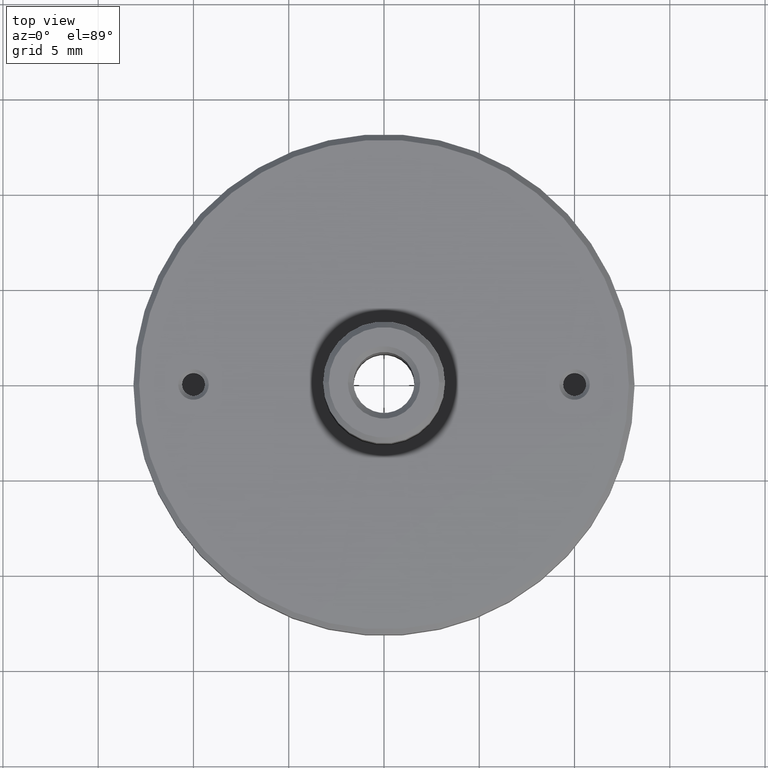
[diagram: clean part render]
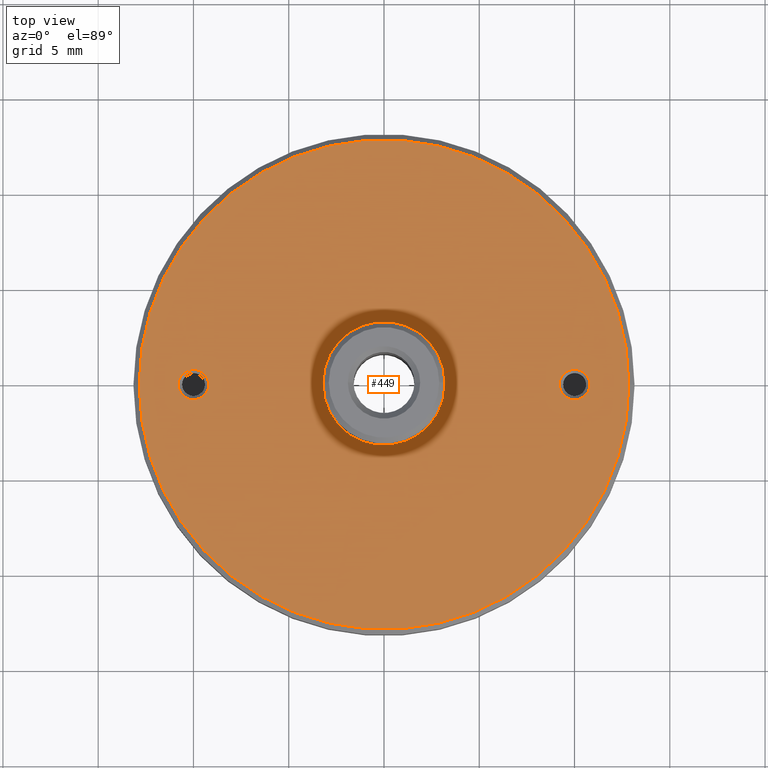
[diagram: same view with one face highlighted and labeled with its STEP entity id]
A machine part, top view. The second image highlights one B-rep face of the part: STEP entity #449.
In plain terms, the highlighted planar face has unit normal (0, 0, 1).
Its self-contained STEP definition (entity closure, byte-faithful):
#8 = ORIENTED_EDGE ( 'NONE', *, *, #310, .F. ) ;
#10 = CARTESIAN_POINT ( 'NONE',  ( 0.000000000000000000, 0.000000000000000000, 3.200000000000091660 ) ) ;
#23 = FACE_BOUND ( 'NONE', #383, .T. ) ;
#33 = DIRECTION ( 'NONE',  ( 1.000000000000000000, 0.000000000000000000, 0.000000000000000000 ) ) ;
#44 = DIRECTION ( 'NONE',  ( -0.000000000000000000, 0.000000000000000000, -1.000000000000000000 ) ) ;
#45 = CARTESIAN_POINT ( 'NONE',  ( 9.200000000000018829, 9.797174393178595655E-17, 3.199999999999981082 ) ) ;
#57 = DIRECTION ( 'NONE',  ( 1.000000000000000000, 0.000000000000000000, 0.000000000000000000 ) ) ;
#83 = ORIENTED_EDGE ( 'NONE', *, *, #507, .T. ) ;
#95 = VERTEX_POINT ( 'NONE', #749 ) ;
#99 = EDGE_CURVE ( 'NONE', #678, #368, #912, .T. ) ;
#127 = VERTEX_POINT ( 'NONE', #611 ) ;
#130 = EDGE_CURVE ( 'NONE', #133, #127, #352, .T. ) ;
#133 = VERTEX_POINT ( 'NONE', #200 ) ;
#137 = CIRCLE ( 'NONE', #280, 0.7999999999999812816 ) ;
#144 = CIRCLE ( 'NONE', #655, 0.7999999999999812816 ) ;
#157 = DIRECTION ( 'NONE',  ( 1.000000000000000000, 0.000000000000000000, 0.000000000000000000 ) ) ;
#169 = AXIS2_PLACEMENT_3D ( 'NONE', #604, #393, #874 ) ;
#171 = CARTESIAN_POINT ( 'NONE',  ( 12.84999999999991083, 1.592040838891553771E-15, 3.200000000000091660 ) ) ;
#184 = DIRECTION ( 'NONE',  ( 1.000000000000000000, 0.000000000000000000, 0.000000000000000000 ) ) ;
#200 = CARTESIAN_POINT ( 'NONE',  ( -2.799999999999999822, 3.429011037612588783E-16, 3.200000000000000178 ) ) ;
#226 = EDGE_LOOP ( 'NONE', ( #895, #770 ) ) ;
#234 = AXIS2_PLACEMENT_3D ( 'NONE', #823, #810, #33 ) ;
#237 = FACE_BOUND ( 'NONE', #392, .T. ) ;
#240 = PLANE ( 'NONE',  #169 ) ;
#241 = CARTESIAN_POINT ( 'NONE',  ( -12.84999999999991083, 0.000000000000000000, 3.200000000000091660 ) ) ;
#246 = CARTESIAN_POINT ( 'NONE',  ( -10.00000000000000000, 0.000000000000000000, 3.199999999999981082 ) ) ;
#265 = CARTESIAN_POINT ( 'NONE',  ( 0.000000000000000000, 0.000000000000000000, 3.200000000000000178 ) ) ;
#268 = DIRECTION ( 'NONE',  ( 1.000000000000000000, 0.000000000000000000, 0.000000000000000000 ) ) ;
#275 = DIRECTION ( 'NONE',  ( -0.000000000000000000, 0.000000000000000000, -1.000000000000000000 ) ) ;
#277 = AXIS2_PLACEMENT_3D ( 'NONE', #824, #757, #329 ) ;
#280 = AXIS2_PLACEMENT_3D ( 'NONE', #621, #831, #57 ) ;
#310 = EDGE_CURVE ( 'NONE', #95, #765, #144, .T. ) ;
#316 = CARTESIAN_POINT ( 'NONE',  ( -10.79999999999998117, 9.797174393178595655E-17, 3.199999999999981082 ) ) ;
#329 = DIRECTION ( 'NONE',  ( -1.000000000000000000, 0.000000000000000000, 0.000000000000000000 ) ) ;
#346 = ORIENTED_EDGE ( 'NONE', *, *, #724, .F. ) ;
#348 = DIRECTION ( 'NONE',  ( 0.000000000000000000, -0.000000000000000000, 1.000000000000000000 ) ) ;
#352 = CIRCLE ( 'NONE', #861, 2.799999999999999822 ) ;
#365 = CIRCLE ( 'NONE', #487, 0.7999999999999812816 ) ;
#368 = VERTEX_POINT ( 'NONE', #171 ) ;
#383 = EDGE_LOOP ( 'NONE', ( #453, #83 ) ) ;
#392 = EDGE_LOOP ( 'NONE', ( #8, #346 ) ) ;
#393 = DIRECTION ( 'NONE',  ( 0.000000000000000000, 0.000000000000000000, 1.000000000000000000 ) ) ;
#449 = ADVANCED_FACE ( 'NONE', ( #584, #237, #23, #589 ), #240, .T. ) ;
#453 = ORIENTED_EDGE ( 'NONE', *, *, #811, .T. ) ;
#487 = AXIS2_PLACEMENT_3D ( 'NONE', #246, #508, #157 ) ;
#502 = CIRCLE ( 'NONE', #747, 12.84999999999991083 ) ;
#505 = EDGE_CURVE ( 'NONE', #127, #133, #882, .T. ) ;
#507 = EDGE_CURVE ( 'NONE', #836, #906, #137, .T. ) ;
#508 = DIRECTION ( 'NONE',  ( 0.000000000000000000, -0.000000000000000000, 1.000000000000000000 ) ) ;
#514 = AXIS2_PLACEMENT_3D ( 'NONE', #265, #44, #184 ) ;
#555 = CARTESIAN_POINT ( 'NONE',  ( 0.000000000000000000, 0.000000000000000000, 3.200000000000000178 ) ) ;
#576 = CARTESIAN_POINT ( 'NONE',  ( -10.00000000000000000, 0.000000000000000000, 3.199999999999981082 ) ) ;
#584 = FACE_BOUND ( 'NONE', #226, .T. ) ;
#589 = FACE_OUTER_BOUND ( 'NONE', #873, .T. ) ;
#604 = CARTESIAN_POINT ( 'NONE',  ( -13.00419999999999909, -13.00419999999999909, 3.200000000000000178 ) ) ;
#611 = CARTESIAN_POINT ( 'NONE',  ( 2.799999999999999822, 0.000000000000000000, 3.200000000000000178 ) ) ;
#621 = CARTESIAN_POINT ( 'NONE',  ( 10.00000000000000000, 0.000000000000000000, 3.199999999999981082 ) ) ;
#635 = ORIENTED_EDGE ( 'NONE', *, *, #99, .T. ) ;
#636 = DIRECTION ( 'NONE',  ( -1.000000000000000000, 0.000000000000000000, 0.000000000000000000 ) ) ;
#655 = AXIS2_PLACEMENT_3D ( 'NONE', #576, #348, #842 ) ;
#678 = VERTEX_POINT ( 'NONE', #241 ) ;
#724 = EDGE_CURVE ( 'NONE', #765, #95, #365, .T. ) ;
#747 = AXIS2_PLACEMENT_3D ( 'NONE', #10, #852, #636 ) ;
#749 = CARTESIAN_POINT ( 'NONE',  ( -9.200000000000018829, 0.000000000000000000, 3.199999999999981082 ) ) ;
#757 = DIRECTION ( 'NONE',  ( -0.000000000000000000, -0.000000000000000000, 1.000000000000000000 ) ) ;
#765 = VERTEX_POINT ( 'NONE', #316 ) ;
#770 = ORIENTED_EDGE ( 'NONE', *, *, #130, .T. ) ;
#804 = CIRCLE ( 'NONE', #234, 0.7999999999999812816 ) ;
#810 = DIRECTION ( 'NONE',  ( -0.000000000000000000, 0.000000000000000000, -1.000000000000000000 ) ) ;
#811 = EDGE_CURVE ( 'NONE', #906, #836, #804, .T. ) ;
#823 = CARTESIAN_POINT ( 'NONE',  ( 10.00000000000000000, 0.000000000000000000, 3.199999999999981082 ) ) ;
#824 = CARTESIAN_POINT ( 'NONE',  ( 0.000000000000000000, 0.000000000000000000, 3.200000000000091660 ) ) ;
#831 = DIRECTION ( 'NONE',  ( -0.000000000000000000, 0.000000000000000000, -1.000000000000000000 ) ) ;
#836 = VERTEX_POINT ( 'NONE', #45 ) ;
#842 = DIRECTION ( 'NONE',  ( 1.000000000000000000, 0.000000000000000000, 0.000000000000000000 ) ) ;
#852 = DIRECTION ( 'NONE',  ( -0.000000000000000000, -0.000000000000000000, 1.000000000000000000 ) ) ;
#855 = CARTESIAN_POINT ( 'NONE',  ( 10.79999999999998117, 0.000000000000000000, 3.199999999999981082 ) ) ;
#861 = AXIS2_PLACEMENT_3D ( 'NONE', #555, #275, #268 ) ;
#868 = EDGE_CURVE ( 'NONE', #368, #678, #502, .T. ) ;
#873 = EDGE_LOOP ( 'NONE', ( #635, #884 ) ) ;
#874 = DIRECTION ( 'NONE',  ( 1.000000000000000000, 0.000000000000000000, 0.000000000000000000 ) ) ;
#882 = CIRCLE ( 'NONE', #514, 2.799999999999999822 ) ;
#884 = ORIENTED_EDGE ( 'NONE', *, *, #868, .T. ) ;
#895 = ORIENTED_EDGE ( 'NONE', *, *, #505, .T. ) ;
#906 = VERTEX_POINT ( 'NONE', #855 ) ;
#912 = CIRCLE ( 'NONE', #277, 12.84999999999991083 ) ;